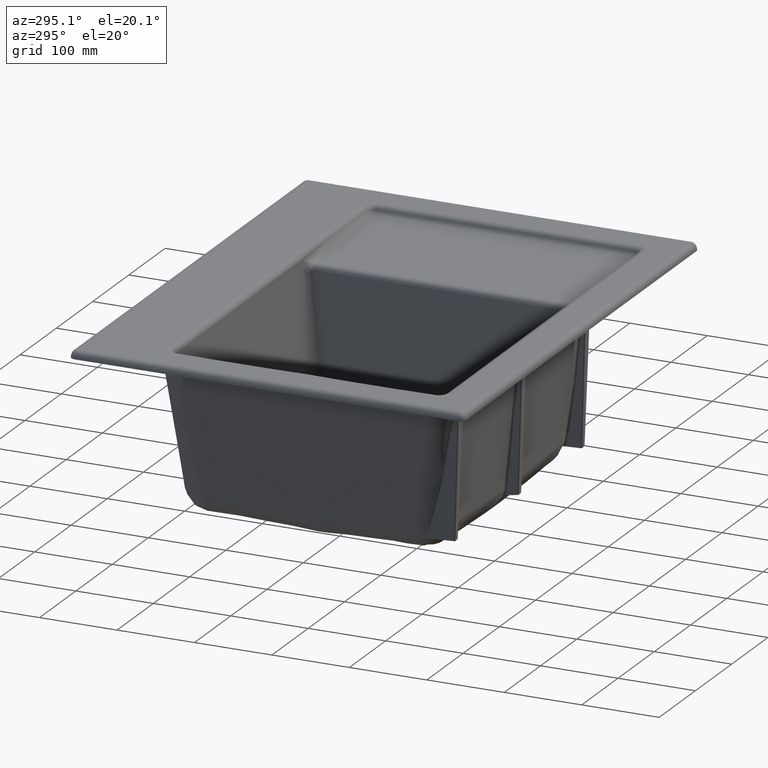
[diagram: clean part render]
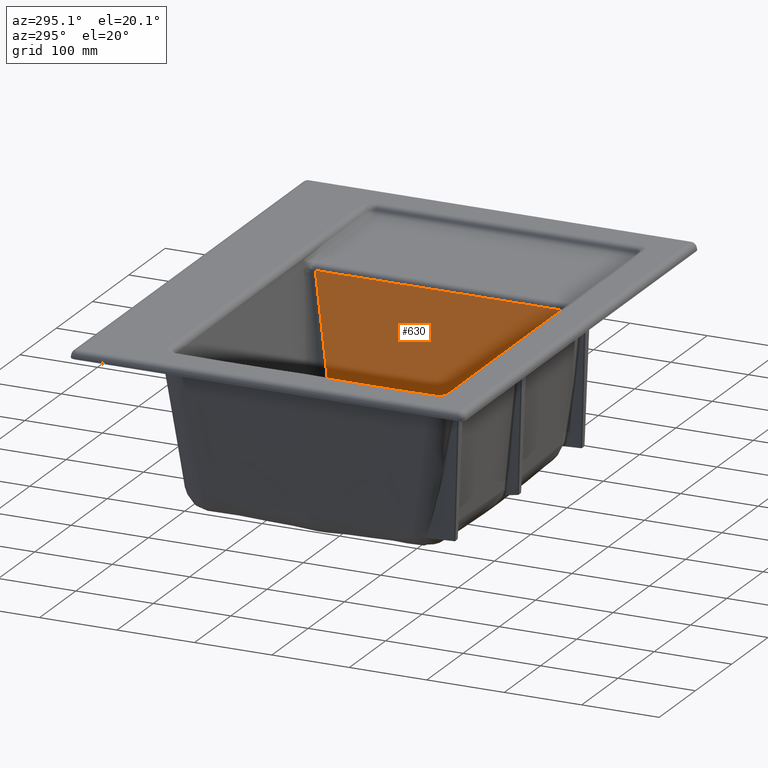
[diagram: same view with one face highlighted and labeled with its STEP entity id]
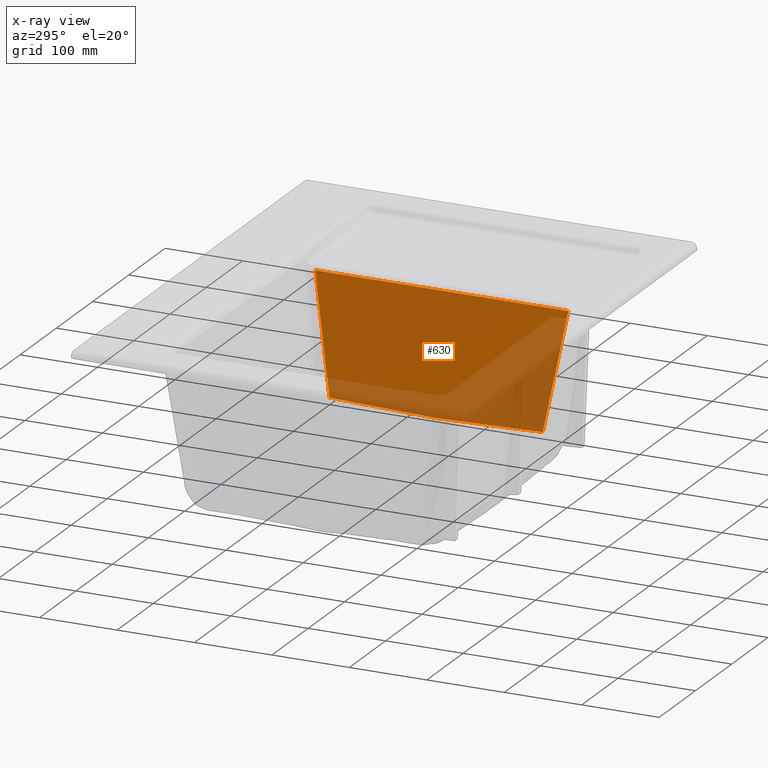
[diagram: x-ray of the same camera — body ghosted, the highlighted face saturated]
A machine part, auxiliary view. The second image highlights one B-rep face of the part: STEP entity #630.
The next image is the same camera in x-ray: the body ghosted, the highlighted face saturated — about 35% of this face is hidden behind the body in this view.
In plain terms, the highlighted planar face has unit normal (0.9945, 0, -0.1046).
Its self-contained STEP definition (entity closure, byte-faithful):
#192=(
BOUNDED_CURVE()
B_SPLINE_CURVE(3,(#5222,#5223,#5224,#5225),.UNSPECIFIED.,.F.,.F.)
B_SPLINE_CURVE_WITH_KNOTS((4,4),(0.,1.),.UNSPECIFIED.)
CURVE()
GEOMETRIC_REPRESENTATION_ITEM()
RATIONAL_B_SPLINE_CURVE((0.999999999999999,0.999999999999999,0.999999999999999,
0.999999999999999))
REPRESENTATION_ITEM('')
);
#630=ADVANCED_FACE('',(#925),#880,.F.);
#880=PLANE('',#3914);
#925=FACE_OUTER_BOUND('',#1182,.T.);
#1182=EDGE_LOOP('',(#1494,#1495,#1496,#1497,#1498));
#1494=ORIENTED_EDGE('',*,*,#3016,.F.);
#1495=ORIENTED_EDGE('',*,*,#3017,.T.);
#1496=ORIENTED_EDGE('',*,*,#3018,.T.);
#1497=ORIENTED_EDGE('',*,*,#3002,.F.);
#1498=ORIENTED_EDGE('',*,*,#3019,.T.);
#2659=VERTEX_POINT('',#5221);
#2660=VERTEX_POINT('',#5226);
#2669=VERTEX_POINT('',#5988);
#2670=VERTEX_POINT('',#5989);
#2671=VERTEX_POINT('',#5994);
#3002=EDGE_CURVE('',#2659,#2660,#192,.T.);
#3016=EDGE_CURVE('',#2669,#2670,#3602,.T.);
#3017=EDGE_CURVE('',#2669,#2671,#3603,.T.);
#3018=EDGE_CURVE('',#2671,#2660,#3604,.T.);
#3019=EDGE_CURVE('',#2659,#2670,#3605,.T.);
#3602=B_SPLINE_CURVE_WITH_KNOTS('',5,(#5982,#5983,#5984,#5985,#5986,#5987),
 .UNSPECIFIED.,.F.,.F.,(6,6),(0.,1.),.UNSPECIFIED.);
#3603=B_SPLINE_CURVE_WITH_KNOTS('',3,(#5990,#5991,#5992,#5993),
 .UNSPECIFIED.,.F.,.F.,(4,4),(0.,1.),.UNSPECIFIED.);
#3604=B_SPLINE_CURVE_WITH_KNOTS('',3,(#5995,#5996,#5997,#5998,#5999,#6000),
 .UNSPECIFIED.,.F.,.F.,(4,2,4),(0.,0.5,1.),.UNSPECIFIED.);
#3605=B_SPLINE_CURVE_WITH_KNOTS('',3,(#6001,#6002,#6003,#6004),
 .UNSPECIFIED.,.F.,.F.,(4,4),(0.,1.),.UNSPECIFIED.);
#3914=AXIS2_PLACEMENT_3D('',#6005,#4215,#4216);
#4215=DIRECTION('',(0.994514976599626,0.,-0.104594270010572));
#4216=DIRECTION('',(0.104199146335491,0.0868394438218295,0.99075801732798));
#5221=CARTESIAN_POINT('',(186.38030588946,-161.210318609052,197.319546610878));
#5222=CARTESIAN_POINT('',(186.380305776795,-161.210324928552,197.319545539625));
#5223=CARTESIAN_POINT('',(181.13782797421,-152.666778046346,147.472429740309));
#5224=CARTESIAN_POINT('',(175.895323099877,-144.124641625124,97.6250565343614));
#5225=CARTESIAN_POINT('',(170.652805503753,-135.583932022598,47.7775623656536));
#5226=CARTESIAN_POINT('',(170.65280550694,-135.583931843821,47.77756239595));
#5982=CARTESIAN_POINT('',(185.759927821008,164.507660263903,191.420798236167));
#5983=CARTESIAN_POINT('',(185.884003480807,164.709722191309,192.60054834952));
#5984=CARTESIAN_POINT('',(186.008079155238,164.911783340774,193.780298602008));
#5985=CARTESIAN_POINT('',(186.132154844036,165.113843722895,194.960048991093));
#5986=CARTESIAN_POINT('',(186.256230546952,165.315903348298,196.139799514423));
#5987=CARTESIAN_POINT('',(186.380306263755,165.517962227635,197.319550169796));
#5988=CARTESIAN_POINT('',(185.759927539393,164.507659804713,191.42079555848));
#5989=CARTESIAN_POINT('',(186.38030613294,165.517969570097,197.319548925955));
#5990=CARTESIAN_POINT('',(185.75992776117,164.507660165763,191.420797667199));
#5991=CARTESIAN_POINT('',(180.73290916043,156.320969316557,143.622335231589));
#5992=CARTESIAN_POINT('',(175.704426479641,148.130291826484,95.8099518657426));
#5993=CARTESIAN_POINT('',(170.674510355083,139.935746620973,47.9839388689771));
#5994=CARTESIAN_POINT('',(170.674510726764,139.935725766302,47.9839424030225));
#5995=CARTESIAN_POINT('',(170.674510624317,139.935747059598,47.983941428938));
#5996=CARTESIAN_POINT('',(170.443595726225,94.0267743263203,45.7883304796002));
#5997=CARTESIAN_POINT('',(170.272525037619,48.0733972132984,44.161736959147));
#5998=CARTESIAN_POINT('',(170.2628119385,-43.7802846311301,44.0693817800147));
#5999=CARTESIAN_POINT('',(170.425852528256,-89.6861083799505,45.6196226133778));
#6000=CARTESIAN_POINT('',(170.652805500437,-135.583931649258,47.777562334114));
#6001=CARTESIAN_POINT('',(186.380306002131,-161.210312289561,197.319547682186));
#6002=CARTESIAN_POINT('',(186.380306002131,-52.300882555517,197.319547682186));
#6003=CARTESIAN_POINT('',(186.380306002131,56.6085471785269,197.319547682186));
#6004=CARTESIAN_POINT('',(186.380306002131,165.517976912571,197.319547682186));
#6005=CARTESIAN_POINT('',(157.343394003341,351.8187802263,-78.772477761304));